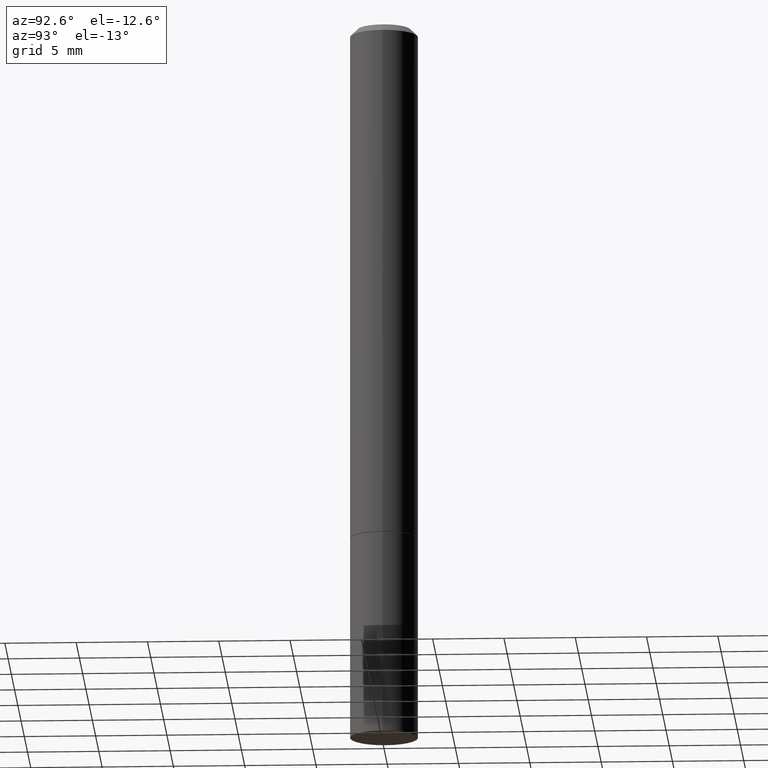
[diagram: clean part render]
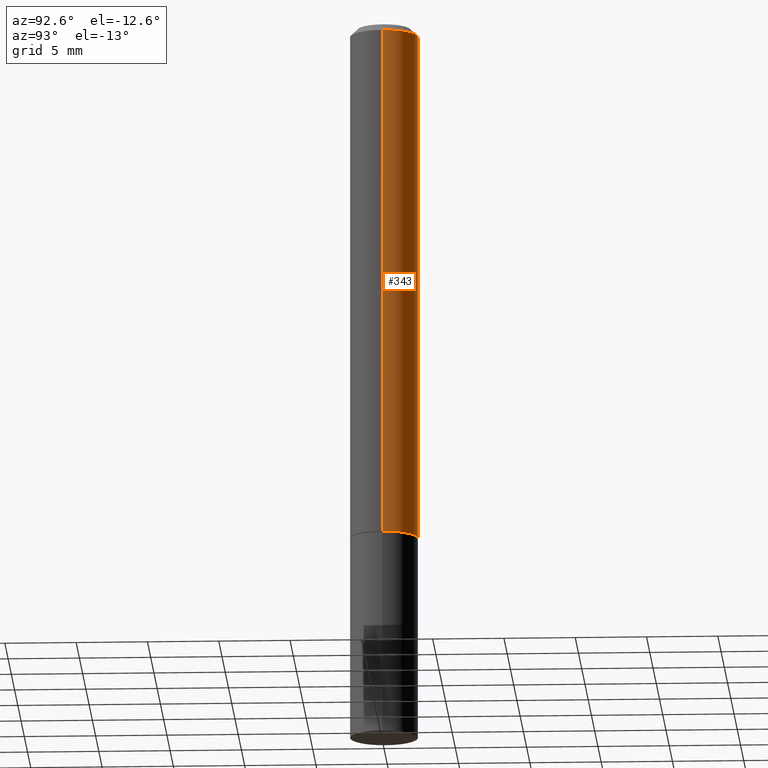
[diagram: same view with one face highlighted and labeled with its STEP entity id]
A machine part, auxiliary view. The second image highlights one B-rep face of the part: STEP entity #343.
In plain terms, the highlighted cylindrical surface (edge-blend (fillet) strip) has radius 2.3812 mm, axis along (-0, 0, 1).
Its self-contained STEP definition (entity closure, byte-faithful):
#6 = CARTESIAN_POINT ( 'NONE',  ( 3.512915940084948255E-29, -5.015512943248178546E-15, -1.436499999999999888 ) ) ;
#24 = LINE ( 'NONE', #55, #221 ) ;
#28 = CYLINDRICAL_SURFACE ( 'NONE', #309, 0.09374999999999991673 ) ;
#41 = AXIS2_PLACEMENT_3D ( 'NONE', #230, #91, #202 ) ;
#55 = CARTESIAN_POINT ( 'NONE',  ( -0.09374999999999991673, 6.661338147750933326E-16, -4.611501647113969791E-30 ) ) ;
#69 = EDGE_LOOP ( 'NONE', ( #102, #215, #357, #304 ) ) ;
#83 = CARTESIAN_POINT ( 'NONE',  ( 0.09374999999999991673, -6.546527510330869125E-16, 4.571415727308685602E-30 ) ) ;
#91 = DIRECTION ( 'NONE',  ( -2.445468806185136597E-29, 3.491481338843145583E-15, 1.000000000000000000 ) ) ;
#93 = EDGE_CURVE ( 'NONE', #95, #270, #276, .T. ) ;
#95 = VERTEX_POINT ( 'NONE', #140 ) ;
#96 = VERTEX_POINT ( 'NONE', #247 ) ;
#102 = ORIENTED_EDGE ( 'NONE', *, *, #185, .T. ) ;
#127 = CIRCLE ( 'NONE', #196, 0.09375000000000001388 ) ;
#130 = VERTEX_POINT ( 'NONE', #284 ) ;
#140 = CARTESIAN_POINT ( 'NONE',  ( 0.09375000000000001388, -5.670165694281265261E-15, -1.436499999999999888 ) ) ;
#147 = DIRECTION ( 'NONE',  ( 1.000000000000000000, -6.982962677686261189E-15, 0.000000000000000000 ) ) ;
#174 = DIRECTION ( 'NONE',  ( -2.445468806185136597E-29, 3.491481338843145583E-15, 1.000000000000000000 ) ) ;
#181 = EDGE_CURVE ( 'NONE', #270, #130, #283, .T. ) ;
#185 = EDGE_CURVE ( 'NONE', #95, #96, #127, .T. ) ;
#196 = AXIS2_PLACEMENT_3D ( 'NONE', #6, #174, #147 ) ;
#199 = FACE_OUTER_BOUND ( 'NONE', #69, .T. ) ;
#202 = DIRECTION ( 'NONE',  ( 1.000000000000000000, -6.982962677686267499E-15, 0.000000000000000000 ) ) ;
#215 = ORIENTED_EDGE ( 'NONE', *, *, #306, .T. ) ;
#219 = DIRECTION ( 'NONE',  ( -2.445468806185136877E-29, 3.491481338843145188E-15, 1.000000000000000000 ) ) ;
#221 = VECTOR ( 'NONE', #226, 39.37007874015748143 ) ;
#226 = DIRECTION ( 'NONE',  ( -2.445468806185136877E-29, 3.491481338843145188E-15, 1.000000000000000000 ) ) ;
#227 = CARTESIAN_POINT ( 'NONE',  ( 0.09374999999999983347, -7.130013140679430017E-16, -0.02000000000000003858 ) ) ;
#230 = CARTESIAN_POINT ( 'NONE',  ( 4.890937612370282792E-31, -6.982962677686303935E-17, -0.02000000000000003858 ) ) ;
#247 = CARTESIAN_POINT ( 'NONE',  ( -0.09375000000000001388, -1.876537470237424631E-15, -1.436499999999999888 ) ) ;
#249 = DIRECTION ( 'NONE',  ( -2.445468806185136597E-29, 3.491481338843145583E-15, 1.000000000000000000 ) ) ;
#256 = CARTESIAN_POINT ( 'NONE',  ( 0.000000000000000000, 0.000000000000000000, 0.000000000000000000 ) ) ;
#270 = VERTEX_POINT ( 'NONE', #227 ) ;
#276 = LINE ( 'NONE', #83, #313 ) ;
#283 = CIRCLE ( 'NONE', #41, 0.09374999999999983347 ) ;
#284 = CARTESIAN_POINT ( 'NONE',  ( -0.09374999999999983347, 5.848231242562233185E-16, -0.02000000000000003858 ) ) ;
#304 = ORIENTED_EDGE ( 'NONE', *, *, #93, .F. ) ;
#306 = EDGE_CURVE ( 'NONE', #96, #130, #24, .T. ) ;
#309 = AXIS2_PLACEMENT_3D ( 'NONE', #256, #249, #361 ) ;
#313 = VECTOR ( 'NONE', #219, 39.37007874015748143 ) ;
#343 = ADVANCED_FACE ( 'NONE', ( #199 ), #28, .T. ) ;
#357 = ORIENTED_EDGE ( 'NONE', *, *, #181, .F. ) ;
#361 = DIRECTION ( 'NONE',  ( 1.000000000000000000, -6.982962677686266711E-15, 4.876176775795935793E-29 ) ) ;